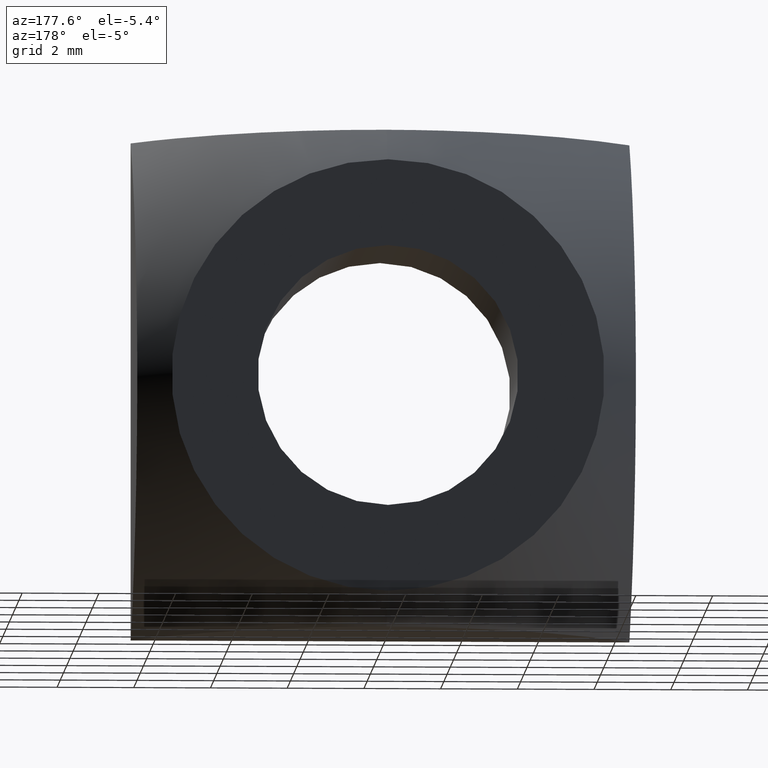
[diagram: clean part render]
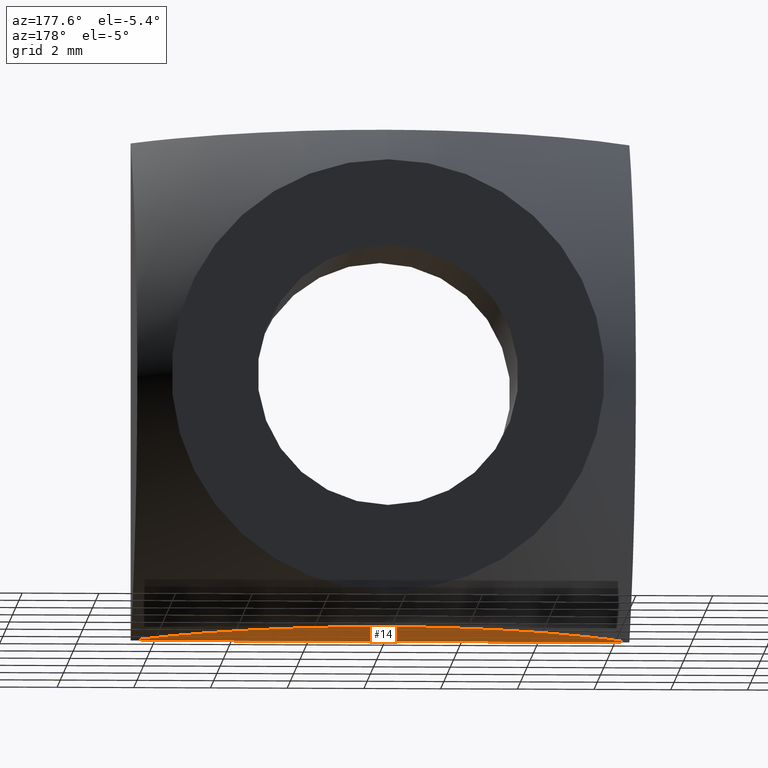
[diagram: same view with one face highlighted and labeled with its STEP entity id]
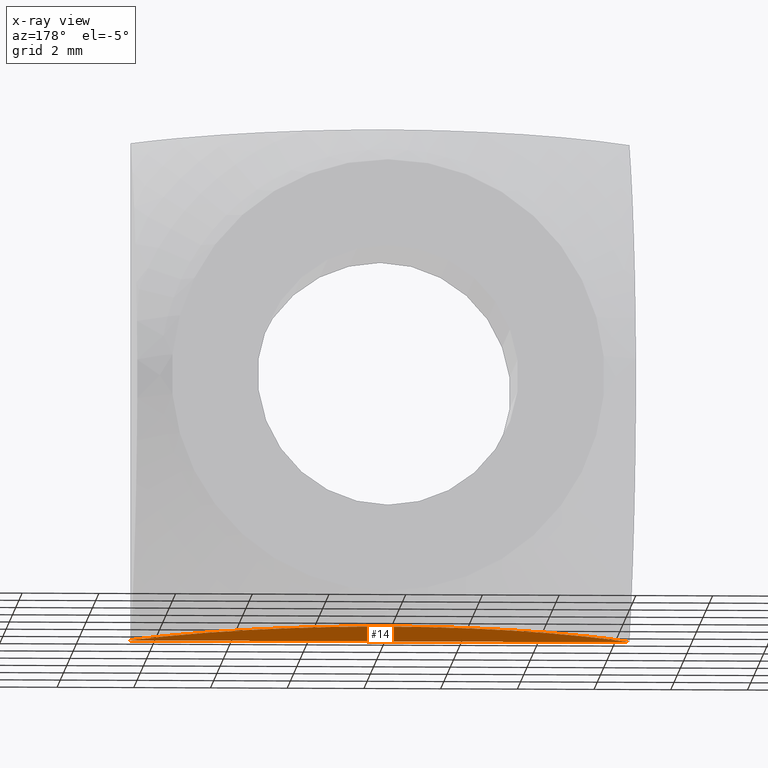
[diagram: x-ray of the same camera — body ghosted, the highlighted face saturated]
A machine part, auxiliary view. The second image highlights one B-rep face of the part: STEP entity #14.
The next image is the same camera in x-ray: the body ghosted, the highlighted face saturated — about 0% of this face is hidden behind the body in this view.
In plain terms, the highlighted planar face has unit normal (0, 0, 1).
Its self-contained STEP definition (entity closure, byte-faithful):
#1 = EDGE_CURVE ( 'NONE', #430, #438, #247, .T. ) ;
#9 = EDGE_CURVE ( 'NONE', #305, #354, #57, .T. ) ;
#13 = EDGE_CURVE ( 'NONE', #354, #438, #227, .T. ) ;
#14 = ADVANCED_FACE ( 'NONE', ( #237 ), #250, .F. ) ;
#25 = EDGE_CURVE ( 'NONE', #216, #305, #54, .T. ) ;
#37 = EDGE_CURVE ( 'NONE', #216, #430, #350, .T. ) ;
#54 = B_SPLINE_CURVE_WITH_KNOTS ( 'NONE', 3,
 ( #423, #191, #271, #137, #364, #150, #395, #249, #245, #263, #235, #403 ),
 .UNSPECIFIED., .F., .F.,
 ( 4, 2, 2, 2, 2, 4 ),
 ( 0.05469827054856396500, 0.05668888045020877000, 0.05867949035185357500, 0.05967479530267597700, 0.06067010025349838000, 0.06266071015514318400 ),
 .UNSPECIFIED. ) ;
#57 = B_SPLINE_CURVE_WITH_KNOTS ( 'NONE', 3,
 ( #229, #309, #442, #246, #254, #409, #387, #308, #389, #307, #366, #390 ),
 .UNSPECIFIED., .F., .F.,
 ( 4, 2, 2, 2, 2, 4 ),
 ( 0.0000000000000000000, 0.001990046668963425500, 0.003980093337926851100, 0.004975116672408563600, 0.005970140006890277100, 0.007960186675853698700 ),
 .UNSPECIFIED. ) ;
#77 = VECTOR ( 'NONE', #379, 1000.000000000000000 ) ;
#97 = VECTOR ( 'NONE', #170, 1000.000000000000000 ) ;
#99 = AXIS2_PLACEMENT_3D ( 'NONE', #251, #345, #123 ) ;
#115 = VECTOR ( 'NONE', #296, 1000.000000000000000 ) ;
#123 = DIRECTION ( 'NONE',  ( 1.000000000000000000, 0.0000000000000000000, -0.0000000000000000000 ) ) ;
#137 = CARTESIAN_POINT ( 'NONE',  ( 4.797843221465077700, 2.074270503709216000, -6.500000000000000000 ) ) ;
#148 = CARTESIAN_POINT ( 'NONE',  ( 0.0000000000000000000, 4.109735237956652300, -6.499999999999999100 ) ) ;
#150 = CARTESIAN_POINT ( 'NONE',  ( 3.459394421651929900, 3.070451726834670000, -6.499999999999999100 ) ) ;
#170 = DIRECTION ( 'NONE',  ( -1.000000000000000000, -0.0000000000000000000, -0.0000000000000000000 ) ) ;
#190 = CARTESIAN_POINT ( 'NONE',  ( -6.499999999999997300, 0.05089004898358535900, -6.499999999999999100 ) ) ;
#191 = CARTESIAN_POINT ( 'NONE',  ( 6.130557881894588900, 0.6029970287828965200, -6.500000000000000900 ) ) ;
#214 = CARTESIAN_POINT ( 'NONE',  ( -6.500000000000000000, 0.0000000000000000000, -6.499999999999999100 ) ) ;
#216 = VERTEX_POINT ( 'NONE', #383 ) ;
#223 = CARTESIAN_POINT ( 'NONE',  ( -6.500000000000000000, 5.000000000000000000, -6.499999999999999100 ) ) ;
#227 = LINE ( 'NONE', #223, #115 ) ;
#229 = CARTESIAN_POINT ( 'NONE',  ( 0.0000000000000000000, 4.109735237956652300, -6.499999999999999100 ) ) ;
#235 = CARTESIAN_POINT ( 'NONE',  ( 0.6728908548416576700, 4.109735237956652300, -6.500000000000000000 ) ) ;
#237 = FACE_OUTER_BOUND ( 'NONE', #331, .T. ) ;
#245 = CARTESIAN_POINT ( 'NONE',  ( 2.268669397716664100, 3.673102568464428500, -6.500000000000000000 ) ) ;
#246 = CARTESIAN_POINT ( 'NONE',  ( -2.597829809248589000, 3.560517489800219900, -6.499999999999997300 ) ) ;
#247 = LINE ( 'NONE', #214, #97 ) ;
#249 = CARTESIAN_POINT ( 'NONE',  ( 2.579949745945124800, 3.540641047558085400, -6.500000000000000900 ) ) ;
#250 = PLANE ( 'NONE',  #99 ) ;
#251 = CARTESIAN_POINT ( 'NONE',  ( -6.500000000000000000, 5.000000000000000000, -6.499999999999999100 ) ) ;
#254 = CARTESIAN_POINT ( 'NONE',  ( -3.185363310006274200, 3.255375731933094000, -6.500000000000000000 ) ) ;
#256 = CARTESIAN_POINT ( 'NONE',  ( -6.500000000000000000, 0.0000000000000000000, -6.499999999999999100 ) ) ;
#263 = CARTESIAN_POINT ( 'NONE',  ( 1.324089535981858300, 3.993502740051849000, -6.500000000000001800 ) ) ;
#271 = CARTESIAN_POINT ( 'NONE',  ( 5.718393653599501500, 1.119872145102332100, -6.500000000000000000 ) ) ;
#296 = DIRECTION ( 'NONE',  ( -0.0000000000000000000, -1.000000000000000000, -0.0000000000000000000 ) ) ;
#305 = VERTEX_POINT ( 'NONE', #148 ) ;
#307 = CARTESIAN_POINT ( 'NONE',  ( -5.715148467929137300, 1.123431959365110500, -6.500000000000000000 ) ) ;
#308 = CARTESIAN_POINT ( 'NONE',  ( -4.786672189913854700, 2.063239728859812800, -6.499999999999998200 ) ) ;
#309 = CARTESIAN_POINT ( 'NONE',  ( -0.6727004638865354800, 4.109735237956653200, -6.500000000000001800 ) ) ;
#331 = EDGE_LOOP ( 'NONE', ( #426, #428, #421, #432, #356 ) ) ;
#336 = CARTESIAN_POINT ( 'NONE',  ( 6.500000000000000000, 0.0000000000000000000, -6.499999999999999100 ) ) ;
#345 = DIRECTION ( 'NONE',  ( 0.0000000000000000000, 0.0000000000000000000, 1.000000000000000000 ) ) ;
#350 = LINE ( 'NONE', #372, #77 ) ;
#354 = VERTEX_POINT ( 'NONE', #190 ) ;
#356 = ORIENTED_EDGE ( 'NONE', *, *, #9, .F. ) ;
#364 = CARTESIAN_POINT ( 'NONE',  ( 4.284615633495711500, 2.514295792640064900, -6.499999999999999100 ) ) ;
#366 = CARTESIAN_POINT ( 'NONE',  ( -6.128323188261311400, 0.6063366316386016300, -6.500000000000000900 ) ) ;
#372 = CARTESIAN_POINT ( 'NONE',  ( 6.500000000000000000, 5.000000000000000000, -6.499999999999999100 ) ) ;
#379 = DIRECTION ( 'NONE',  ( -0.0000000000000000000, -1.000000000000000000, -0.0000000000000000000 ) ) ;
#383 = CARTESIAN_POINT ( 'NONE',  ( 6.500000000000000000, 0.05089004898344625500, -6.499999999999999100 ) ) ;
#387 = CARTESIAN_POINT ( 'NONE',  ( -4.279733229958274000, 2.493680659320166800, -6.499999999999999100 ) ) ;
#389 = CARTESIAN_POINT ( 'NONE',  ( -5.027364923004357800, 1.836211336588508900, -6.500000000000000000 ) ) ;
#390 = CARTESIAN_POINT ( 'NONE',  ( -6.499999999999997300, 0.05089004898358535900, -6.499999999999999100 ) ) ;
#395 = CARTESIAN_POINT ( 'NONE',  ( 3.174080856937301100, 3.239602677233732700, -6.499999999999999100 ) ) ;
#403 = CARTESIAN_POINT ( 'NONE',  ( 0.0000000000000000000, 4.109735237956652300, -6.499999999999999100 ) ) ;
#409 = CARTESIAN_POINT ( 'NONE',  ( -4.012227267387062000, 2.697749916528825200, -6.500000000000000000 ) ) ;
#421 = ORIENTED_EDGE ( 'NONE', *, *, #1, .T. ) ;
#423 = CARTESIAN_POINT ( 'NONE',  ( 6.500000000000000000, 0.05089004898344625500, -6.499999999999999100 ) ) ;
#426 = ORIENTED_EDGE ( 'NONE', *, *, #25, .F. ) ;
#428 = ORIENTED_EDGE ( 'NONE', *, *, #37, .T. ) ;
#430 = VERTEX_POINT ( 'NONE', #336 ) ;
#432 = ORIENTED_EDGE ( 'NONE', *, *, #13, .F. ) ;
#438 = VERTEX_POINT ( 'NONE', #256 ) ;
#442 = CARTESIAN_POINT ( 'NONE',  ( -1.326264826254120100, 3.993687183244005300, -6.499999999999999100 ) ) ;